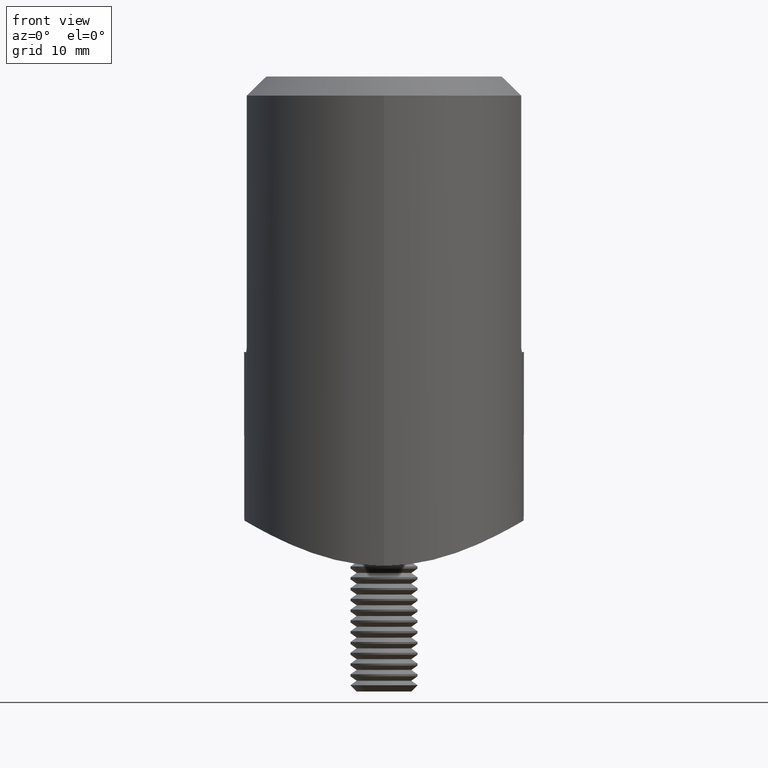
[diagram: clean part render]
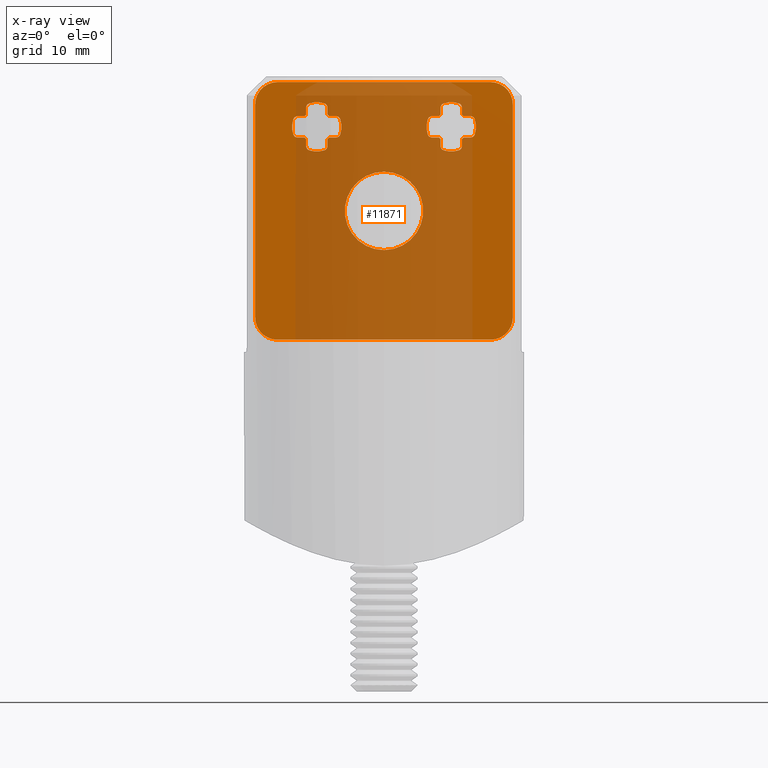
[diagram: x-ray — body ghosted, one internal face saturated and labeled with its STEP entity id]
A machine part, front view, then the same camera in x-ray: the body is ghosted and one INTERNAL B-rep face — a face not visible from any outside direction — is saturated and labeled: STEP entity #11871.
In plain terms, the highlighted planar face has unit normal (0, 1, 0).
Its self-contained STEP definition (entity closure, byte-faithful):
#6 = AXIS2_PLACEMENT_3D ( 'NONE', #9630, #11449, #14998 ) ;
#28 = VERTEX_POINT ( 'NONE', #14793 ) ;
#93 = CARTESIAN_POINT ( 'NONE',  ( 6.000000000000002665, 1.000000000000000000, 7.499999999999996447 ) ) ;
#154 = CIRCLE ( 'NONE', #4499, 1.450000000000001732 ) ;
#227 = LINE ( 'NONE', #16421, #8354 ) ;
#302 = EDGE_CURVE ( 'NONE', #20139, #14176, #17451, .T. ) ;
#330 = EDGE_CURVE ( 'NONE', #14980, #4626, #13312, .T. ) ;
#394 = LINE ( 'NONE', #20735, #3758 ) ;
#435 = VERTEX_POINT ( 'NONE', #2857 ) ;
#491 = DIRECTION ( 'NONE',  ( -0.000000000000000000, 1.000000000000000000, 0.000000000000000000 ) ) ;
#519 = CIRCLE ( 'NONE', #6690, 0.4000000000000001887 ) ;
#527 = VERTEX_POINT ( 'NONE', #1363 ) ;
#568 = ORIENTED_EDGE ( 'NONE', *, *, #7793, .T. ) ;
#572 = DIRECTION ( 'NONE',  ( 0.000000000000000000, 0.000000000000000000, -1.000000000000000000 ) ) ;
#620 = CIRCLE ( 'NONE', #13536, 1.450000000000001732 ) ;
#675 = AXIS2_PLACEMENT_3D ( 'NONE', #11731, #8061, #15264 ) ;
#703 = LINE ( 'NONE', #20973, #14906 ) ;
#829 = CARTESIAN_POINT ( 'NONE',  ( -11.50000000000000000, 1.000000000000000000, 11.49999999999999645 ) ) ;
#864 = CARTESIAN_POINT ( 'NONE',  ( -5.327777777777781054, 1.000000000000000000, 5.405216649877454316 ) ) ;
#1027 = ORIENTED_EDGE ( 'NONE', *, *, #20665, .T. ) ;
#1060 = EDGE_CURVE ( 'NONE', #3324, #2832, #21600, .T. ) ;
#1062 = ORIENTED_EDGE ( 'NONE', *, *, #302, .T. ) ;
#1219 = DIRECTION ( 'NONE',  ( 0.000000000000000000, 0.000000000000000000, -1.000000000000000000 ) ) ;
#1259 = DIRECTION ( 'NONE',  ( -2.168404344971007685E-15, 0.000000000000000000, -1.000000000000000000 ) ) ;
#1289 = DIRECTION ( 'NONE',  ( 0.000000000000000000, 0.000000000000000000, -1.000000000000000000 ) ) ;
#1363 = CARTESIAN_POINT ( 'NONE',  ( -4.286086349899737691, 1.000000000000000000, 6.549999999999997158 ) ) ;
#1484 = CARTESIAN_POINT ( 'NONE',  ( -5.050000000000003375, 1.000000000000000000, 5.786086349899735026 ) ) ;
#1595 = DIRECTION ( 'NONE',  ( 0.000000000000000000, 0.000000000000000000, -1.000000000000000000 ) ) ;
#1653 = VERTEX_POINT ( 'NONE', #18436 ) ;
#1850 = EDGE_CURVE ( 'NONE', #22654, #20996, #17673, .T. ) ;
#1933 = EDGE_LOOP ( 'NONE', ( #2242, #7231, #20050, #13813, #20285, #15767, #6709, #21384, #5199, #3446, #22024, #13448, #5845, #5086, #2772, #17894, #7432, #9699, #15348, #5830, #14850, #568, #4281, #20644 ) ) ;
#1968 = DIRECTION ( 'NONE',  ( 0.000000000000000000, -1.000000000000000000, -0.000000000000000000 ) ) ;
#2022 = DIRECTION ( 'NONE',  ( -0.000000000000000000, 1.000000000000000000, 0.000000000000000000 ) ) ;
#2125 = DIRECTION ( 'NONE',  ( 0.000000000000000000, -1.000000000000000000, -0.000000000000000000 ) ) ;
#2231 = DIRECTION ( 'NONE',  ( 0.000000000000000000, 0.000000000000000000, -1.000000000000000000 ) ) ;
#2242 = ORIENTED_EDGE ( 'NONE', *, *, #2300, .F. ) ;
#2300 = EDGE_CURVE ( 'NONE', #6421, #15086, #13736, .T. ) ;
#2502 = VECTOR ( 'NONE', #10146, 1000.000000000000000 ) ;
#2520 = ORIENTED_EDGE ( 'NONE', *, *, #11246, .F. ) ;
#2543 = CIRCLE ( 'NONE', #7397, 0.4000000000000001887 ) ;
#2593 = CARTESIAN_POINT ( 'NONE',  ( 6.000000000000002665, 1.000000000000000000, 7.499999999999996447 ) ) ;
#2758 = EDGE_CURVE ( 'NONE', #22166, #8748, #8192, .T. ) ;
#2766 = ORIENTED_EDGE ( 'NONE', *, *, #1850, .T. ) ;
#2772 = ORIENTED_EDGE ( 'NONE', *, *, #16440, .T. ) ;
#2802 = CIRCLE ( 'NONE', #19477, 0.3999999999999993006 ) ;
#2832 = VERTEX_POINT ( 'NONE', #15042 ) ;
#2857 = CARTESIAN_POINT ( 'NONE',  ( -9.500000000000005329, 1.000000000000000000, -11.49999999999999112 ) ) ;
#2881 = DIRECTION ( 'NONE',  ( 0.000000000000000000, 0.000000000000000000, 1.000000000000000000 ) ) ;
#2918 = EDGE_CURVE ( 'NONE', #23083, #5296, #15648, .T. ) ;
#2968 = VERTEX_POINT ( 'NONE', #20991 ) ;
#2979 = VERTEX_POINT ( 'NONE', #7053 ) ;
#3079 = LINE ( 'NONE', #12520, #6161 ) ;
#3324 = VERTEX_POINT ( 'NONE', #6417 ) ;
#3346 = VERTEX_POINT ( 'NONE', #11543 ) ;
#3387 = AXIS2_PLACEMENT_3D ( 'NONE', #8674, #21157, #1595 ) ;
#3446 = ORIENTED_EDGE ( 'NONE', *, *, #8259, .T. ) ;
#3475 = CARTESIAN_POINT ( 'NONE',  ( -7.095445115013531812, 1.000000000000000000, 6.549999999999996270 ) ) ;
#3484 = ORIENTED_EDGE ( 'NONE', *, *, #9007, .T. ) ;
#3531 = LINE ( 'NONE', #16860, #13837 ) ;
#3644 = EDGE_CURVE ( 'NONE', #21978, #3346, #227, .T. ) ;
#3678 = DIRECTION ( 'NONE',  ( 0.000000000000000000, 0.000000000000000000, -1.000000000000000000 ) ) ;
#3722 = VERTEX_POINT ( 'NONE', #20437 ) ;
#3728 = DIRECTION ( 'NONE',  ( 1.000000000000000000, 0.000000000000000000, 7.542275982507857147E-17 ) ) ;
#3758 = VECTOR ( 'NONE', #6641, 1000.000000000000000 ) ;
#3769 = EDGE_CURVE ( 'NONE', #2968, #11783, #16084, .T. ) ;
#3793 = EDGE_CURVE ( 'NONE', #19133, #2832, #519, .T. ) ;
#3804 = DIRECTION ( 'NONE',  ( 0.000000000000000000, -1.000000000000000000, -0.000000000000000000 ) ) ;
#3936 = CARTESIAN_POINT ( 'NONE',  ( -11.50000000000000000, 1.000000000000000000, 9.499999999999996447 ) ) ;
#3985 = CARTESIAN_POINT ( 'NONE',  ( 6.000000000000002665, 1.000000000000000000, 7.499999999999996447 ) ) ;
#4042 = EDGE_CURVE ( 'NONE', #3722, #435, #17769, .T. ) ;
#4268 = VERTEX_POINT ( 'NONE', #16935 ) ;
#4281 = ORIENTED_EDGE ( 'NONE', *, *, #15113, .F. ) ;
#4335 = CIRCLE ( 'NONE', #5715, 1.450000000000001732 ) ;
#4381 = DIRECTION ( 'NONE',  ( 0.000000000000000000, -1.000000000000000000, 0.000000000000000000 ) ) ;
#4478 = VECTOR ( 'NONE', #9111, 1000.000000000000000 ) ;
#4482 = CARTESIAN_POINT ( 'NONE',  ( 11.50000000000000000, 1.000000000000000000, 9.499999999999998224 ) ) ;
#4498 = CARTESIAN_POINT ( 'NONE',  ( 6.672222222222226939, 1.000000000000000000, 5.405216649877455204 ) ) ;
#4499 = AXIS2_PLACEMENT_3D ( 'NONE', #23107, #14217, #10728 ) ;
#4577 = AXIS2_PLACEMENT_3D ( 'NONE', #11793, #15399, #11872 ) ;
#4580 = AXIS2_PLACEMENT_3D ( 'NONE', #3985, #2125, #12889 ) ;
#4626 = VERTEX_POINT ( 'NONE', #4887 ) ;
#4633 = FACE_OUTER_BOUND ( 'NONE', #17203, .T. ) ;
#4637 = CIRCLE ( 'NONE', #7781, 2.200000000000000622 ) ;
#4700 = VECTOR ( 'NONE', #5636, 1000.000000000000000 ) ;
#4793 = CIRCLE ( 'NONE', #6722, 2.200000000000000622 ) ;
#4887 = CARTESIAN_POINT ( 'NONE',  ( -6.672222222222226051, 1.000000000000000000, 9.594783350122536802 ) ) ;
#4952 = CARTESIAN_POINT ( 'NONE',  ( 5.327777777777778390, 1.000000000000000000, 9.594783350122536802 ) ) ;
#5030 = CARTESIAN_POINT ( 'NONE',  ( -6.950000000000001954, 1.000000000000000000, 9.213913650100257868 ) ) ;
#5052 = LINE ( 'NONE', #7364, #4478 ) ;
#5078 = DIRECTION ( 'NONE',  ( -1.508455196501571429E-16, 0.000000000000000000, -1.000000000000000000 ) ) ;
#5086 = ORIENTED_EDGE ( 'NONE', *, *, #6932, .T. ) ;
#5110 = EDGE_CURVE ( 'NONE', #7623, #10399, #14143, .T. ) ;
#5184 = ORIENTED_EDGE ( 'NONE', *, *, #9480, .T. ) ;
#5199 = ORIENTED_EDGE ( 'NONE', *, *, #17174, .T. ) ;
#5235 = CARTESIAN_POINT ( 'NONE',  ( 6.949999999998421885, 1.000000000000000000, 8.595445115011701276 ) ) ;
#5280 = CIRCLE ( 'NONE', #22964, 2.200000000000000622 ) ;
#5296 = VERTEX_POINT ( 'NONE', #7949 ) ;
#5309 = VERTEX_POINT ( 'NONE', #9635 ) ;
#5377 = VERTEX_POINT ( 'NONE', #17012 ) ;
#5385 = VERTEX_POINT ( 'NONE', #22412 ) ;
#5413 = DIRECTION ( 'NONE',  ( 0.000000000000000000, 0.000000000000000000, -1.000000000000000000 ) ) ;
#5636 = DIRECTION ( 'NONE',  ( -1.000000000000000000, -0.000000000000000000, 5.279593187755499510E-16 ) ) ;
#5662 = CARTESIAN_POINT ( 'NONE',  ( -5.450000000000001954, 1.000000000000000000, 9.213913650100261421 ) ) ;
#5698 = EDGE_CURVE ( 'NONE', #5385, #5377, #14539, .T. ) ;
#5715 = AXIS2_PLACEMENT_3D ( 'NONE', #19669, #8994, #23029 ) ;
#5801 = DIRECTION ( 'NONE',  ( -6.263226980648714405E-16, 0.000000000000000000, -1.000000000000000000 ) ) ;
#5819 = DIRECTION ( 'NONE',  ( 6.263226980648709475E-16, 0.000000000000000000, 1.000000000000000000 ) ) ;
#5820 = CARTESIAN_POINT ( 'NONE',  ( 6.950000000000002842, 1.000000000000000000, 6.499999999999997335 ) ) ;
#5828 = DIRECTION ( 'NONE',  ( -0.000000000000000000, 1.000000000000000000, 0.000000000000000000 ) ) ;
#5830 = ORIENTED_EDGE ( 'NONE', *, *, #22835, .T. ) ;
#5845 = ORIENTED_EDGE ( 'NONE', *, *, #13173, .F. ) ;
#5897 = AXIS2_PLACEMENT_3D ( 'NONE', #2593, #6201, #18603 ) ;
#5939 = VERTEX_POINT ( 'NONE', #6015 ) ;
#5981 = DIRECTION ( 'NONE',  ( 2.602085213965210642E-15, 0.000000000000000000, -1.000000000000000000 ) ) ;
#6015 = CARTESIAN_POINT ( 'NONE',  ( 7.095445115013530923, 1.000000000000000000, 8.449999999999997513 ) ) ;
#6063 = CIRCLE ( 'NONE', #22681, 1.450000000000001732 ) ;
#6161 = VECTOR ( 'NONE', #23007, 1000.000000000000000 ) ;
#6192 = CARTESIAN_POINT ( 'NONE',  ( 7.095445115011708381, 1.000000000000000000, 6.550000000001578115 ) ) ;
#6201 = DIRECTION ( 'NONE',  ( 0.000000000000000000, -1.000000000000000000, -0.000000000000000000 ) ) ;
#6274 = AXIS2_PLACEMENT_3D ( 'NONE', #22132, #15026, #21904 ) ;
#6362 = DIRECTION ( 'NONE',  ( -0.000000000000000000, 1.000000000000000000, 0.000000000000000000 ) ) ;
#6417 = CARTESIAN_POINT ( 'NONE',  ( 8.094783350122543908, 1.000000000000000000, 6.827777777777773061 ) ) ;
#6421 = VERTEX_POINT ( 'NONE', #9855 ) ;
#6495 = DIRECTION ( 'NONE',  ( 1.000000000000000000, -0.000000000000000000, -0.000000000000000000 ) ) ;
#6512 = EDGE_CURVE ( 'NONE', #20336, #15086, #4793, .T. ) ;
#6573 = DIRECTION ( 'NONE',  ( 0.000000000000000000, -1.000000000000000000, -0.000000000000000000 ) ) ;
#6641 = DIRECTION ( 'NONE',  ( -0.000000000000000000, -0.000000000000000000, 1.000000000000000000 ) ) ;
#6690 = AXIS2_PLACEMENT_3D ( 'NONE', #22830, #22522, #10149 ) ;
#6695 = CARTESIAN_POINT ( 'NONE',  ( 6.000000000000002665, 1.000000000000000000, 7.499999999999996447 ) ) ;
#6709 = ORIENTED_EDGE ( 'NONE', *, *, #2758, .F. ) ;
#6722 = AXIS2_PLACEMENT_3D ( 'NONE', #6695, #17150, #1219 ) ;
#6792 = CARTESIAN_POINT ( 'NONE',  ( -7.000000000000002665, 1.000000000000000000, 6.549999999999996270 ) ) ;
#6823 = EDGE_CURVE ( 'NONE', #22654, #10399, #14246, .T. ) ;
#6826 = AXIS2_PLACEMENT_3D ( 'NONE', #9941, #13756, #1289 ) ;
#6883 = CIRCLE ( 'NONE', #20862, 3.499999999999999556 ) ;
#6887 = DIRECTION ( 'NONE',  ( 0.000000000000000000, -1.000000000000000000, -0.000000000000000000 ) ) ;
#6906 = CARTESIAN_POINT ( 'NONE',  ( -5.050000000000002487, 1.000000000000000000, 8.595445115013525594 ) ) ;
#6932 = EDGE_CURVE ( 'NONE', #10991, #4268, #21502, .T. ) ;
#7052 = CIRCLE ( 'NONE', #13056, 0.4000000000000001887 ) ;
#7053 = CARTESIAN_POINT ( 'NONE',  ( -6.672222222222226939, 1.000000000000000000, 5.405216649877457868 ) ) ;
#7100 = CARTESIAN_POINT ( 'NONE',  ( 6.950000000000002842, 1.000000000000000000, 5.786086349899735026 ) ) ;
#7161 = AXIS2_PLACEMENT_3D ( 'NONE', #11884, #13510, #1259 ) ;
#7231 = ORIENTED_EDGE ( 'NONE', *, *, #16722, .T. ) ;
#7364 = CARTESIAN_POINT ( 'NONE',  ( 5.000000000000003553, 1.000000000000000000, 6.549999999999997158 ) ) ;
#7397 = AXIS2_PLACEMENT_3D ( 'NONE', #7682, #15048, #572 ) ;
#7416 = DIRECTION ( 'NONE',  ( 0.000000000000000000, 0.000000000000000000, -1.000000000000000000 ) ) ;
#7432 = ORIENTED_EDGE ( 'NONE', *, *, #22889, .F. ) ;
#7521 = CARTESIAN_POINT ( 'NONE',  ( -7.713913650100257868, 1.000000000000000000, 6.949999999999995737 ) ) ;
#7538 = CIRCLE ( 'NONE', #22302, 2.000000000000000000 ) ;
#7623 = VERTEX_POINT ( 'NONE', #10521 ) ;
#7649 = VERTEX_POINT ( 'NONE', #21192 ) ;
#7650 = DIRECTION ( 'NONE',  ( -1.000000000000000000, 0.000000000000000000, 0.000000000000000000 ) ) ;
#7682 = CARTESIAN_POINT ( 'NONE',  ( -7.713913650100259645, 1.000000000000000000, 8.049999999999997158 ) ) ;
#7781 = AXIS2_PLACEMENT_3D ( 'NONE', #8641, #3804, #12867 ) ;
#7793 = EDGE_CURVE ( 'NONE', #9141, #7649, #18104, .T. ) ;
#7865 = EDGE_CURVE ( 'NONE', #28, #17910, #2802, .T. ) ;
#7880 = CARTESIAN_POINT ( 'NONE',  ( -5.000000000000003553, 1.000000000000000000, 8.449999999999997513 ) ) ;
#7889 = AXIS2_PLACEMENT_3D ( 'NONE', #18390, #4381, #13369 ) ;
#7949 = CARTESIAN_POINT ( 'NONE',  ( -7.095445115011707493, 1.000000000000000000, 8.449999999998414779 ) ) ;
#8061 = DIRECTION ( 'NONE',  ( -0.000000000000000000, 1.000000000000000000, 0.000000000000000000 ) ) ;
#8134 = EDGE_CURVE ( 'NONE', #17248, #1653, #7538, .T. ) ;
#8192 = CIRCLE ( 'NONE', #14134, 0.4000000000000001887 ) ;
#8232 = VECTOR ( 'NONE', #13714, 1000.000000000000000 ) ;
#8259 = EDGE_CURVE ( 'NONE', #12005, #10749, #12282, .T. ) ;
#8354 = VECTOR ( 'NONE', #5819, 1000.000000000000000 ) ;
#8455 = DIRECTION ( 'NONE',  ( 0.000000000000000000, -1.000000000000000000, -0.000000000000000000 ) ) ;
#8472 = VECTOR ( 'NONE', #3728, 1000.000000000000000 ) ;
#8495 = DIRECTION ( 'NONE',  ( 0.000000000000000000, -1.000000000000000000, -0.000000000000000000 ) ) ;
#8543 = VERTEX_POINT ( 'NONE', #15167 ) ;
#8578 = ORIENTED_EDGE ( 'NONE', *, *, #10738, .T. ) ;
#8579 = ORIENTED_EDGE ( 'NONE', *, *, #15036, .T. ) ;
#8582 = VERTEX_POINT ( 'NONE', #13422 ) ;
#8602 = DIRECTION ( 'NONE',  ( -0.000000000000000000, 1.000000000000000000, 0.000000000000000000 ) ) ;
#8641 = CARTESIAN_POINT ( 'NONE',  ( 6.000000000000002665, 1.000000000000000000, 7.499999999999996447 ) ) ;
#8647 = DIRECTION ( 'NONE',  ( 4.336808689942015369E-15, 0.000000000000000000, -1.000000000000000000 ) ) ;
#8674 = CARTESIAN_POINT ( 'NONE',  ( 7.713913650100264086, 1.000000000000000000, 6.949999999999995737 ) ) ;
#8693 = ORIENTED_EDGE ( 'NONE', *, *, #21866, .T. ) ;
#8732 = LINE ( 'NONE', #10677, #8472 ) ;
#8748 = VERTEX_POINT ( 'NONE', #12488 ) ;
#8808 = FACE_BOUND ( 'NONE', #1933, .T. ) ;
#8828 = CIRCLE ( 'NONE', #16322, 0.4000000000000001887 ) ;
#8845 = CARTESIAN_POINT ( 'NONE',  ( 0.000000000000000000, 1.000000000000000000, 8.449999999999997513 ) ) ;
#8921 = ORIENTED_EDGE ( 'NONE', *, *, #10876, .F. ) ;
#8994 = DIRECTION ( 'NONE',  ( 0.000000000000000000, -1.000000000000000000, -0.000000000000000000 ) ) ;
#9007 = EDGE_CURVE ( 'NONE', #28, #4626, #20287, .T. ) ;
#9017 = CARTESIAN_POINT ( 'NONE',  ( -5.450000000000002842, 1.000000000000000000, 5.786086349899735026 ) ) ;
#9111 = DIRECTION ( 'NONE',  ( 1.000000000000000000, 0.000000000000000000, 0.000000000000000000 ) ) ;
#9123 = DIRECTION ( 'NONE',  ( -0.000000000000000000, 1.000000000000000000, 0.000000000000000000 ) ) ;
#9141 = VERTEX_POINT ( 'NONE', #5235 ) ;
#9303 = ORIENTED_EDGE ( 'NONE', *, *, #21251, .T. ) ;
#9332 = ORIENTED_EDGE ( 'NONE', *, *, #13482, .T. ) ;
#9350 = VECTOR ( 'NONE', #19068, 1000.000000000000000 ) ;
#9400 = ORIENTED_EDGE ( 'NONE', *, *, #9752, .T. ) ;
#9463 = EDGE_LOOP ( 'NONE', ( #8921 ) ) ;
#9480 = EDGE_CURVE ( 'NONE', #16644, #17248, #19432, .T. ) ;
#9518 = CARTESIAN_POINT ( 'NONE',  ( 5.450000000000002842, 1.000000000000000000, 5.786086349899735026 ) ) ;
#9525 = VERTEX_POINT ( 'NONE', #22320 ) ;
#9630 = CARTESIAN_POINT ( 'NONE',  ( 9.500000000000000000, 1.000000000000000000, 9.499999999999998224 ) ) ;
#9632 = CARTESIAN_POINT ( 'NONE',  ( 0.000000000000000000, 1.000000000000000000, 0.000000000000000000 ) ) ;
#9635 = CARTESIAN_POINT ( 'NONE',  ( 5.327777777777780166, 1.000000000000000000, 5.405216649877454316 ) ) ;
#9699 = ORIENTED_EDGE ( 'NONE', *, *, #1060, .T. ) ;
#9752 = EDGE_CURVE ( 'NONE', #5296, #9525, #16042, .T. ) ;
#9855 = CARTESIAN_POINT ( 'NONE',  ( 5.050000000000002487, 1.000000000000000000, 9.213913650100257868 ) ) ;
#9908 = DIRECTION ( 'NONE',  ( 0.000000000000000000, 0.000000000000000000, -1.000000000000000000 ) ) ;
#9941 = CARTESIAN_POINT ( 'NONE',  ( 5.450000000000001954, 1.000000000000000000, 9.213913650100257868 ) ) ;
#9987 = ORIENTED_EDGE ( 'NONE', *, *, #15127, .T. ) ;
#10146 = DIRECTION ( 'NONE',  ( 6.263226980648709475E-16, -0.000000000000000000, -1.000000000000000000 ) ) ;
#10149 = DIRECTION ( 'NONE',  ( 0.000000000000000000, 0.000000000000000000, -1.000000000000000000 ) ) ;
#10178 = EDGE_CURVE ( 'NONE', #5309, #10749, #8828, .T. ) ;
#10312 = AXIS2_PLACEMENT_3D ( 'NONE', #11029, #491, #5981 ) ;
#10332 = DIRECTION ( 'NONE',  ( -6.263226980648714405E-16, -0.000000000000000000, 1.000000000000000000 ) ) ;
#10399 = VERTEX_POINT ( 'NONE', #22685 ) ;
#10489 = VERTEX_POINT ( 'NONE', #10628 ) ;
#10512 = CARTESIAN_POINT ( 'NONE',  ( 6.000000000000002665, 1.000000000000000000, 7.499999999999996447 ) ) ;
#10521 = CARTESIAN_POINT ( 'NONE',  ( -8.094783350122540355, 1.000000000000000000, 8.172222222222217169 ) ) ;
#10604 = EDGE_CURVE ( 'NONE', #5385, #20682, #11063, .T. ) ;
#10628 = CARTESIAN_POINT ( 'NONE',  ( -3.905216649877456536, 1.000000000000000000, 6.827777777777773061 ) ) ;
#10677 = CARTESIAN_POINT ( 'NONE',  ( -11.50000000000000000, 1.000000000000000000, 11.49999999999999645 ) ) ;
#10690 = EDGE_CURVE ( 'NONE', #14980, #23083, #20238, .T. ) ;
#10728 = DIRECTION ( 'NONE',  ( 0.000000000000000000, 0.000000000000000000, -1.000000000000000000 ) ) ;
#10738 = EDGE_CURVE ( 'NONE', #22037, #527, #3531, .T. ) ;
#10749 = VERTEX_POINT ( 'NONE', #18589 ) ;
#10793 = VECTOR ( 'NONE', #7650, 1000.000000000000000 ) ;
#10851 = AXIS2_PLACEMENT_3D ( 'NONE', #14905, #13008, #14830 ) ;
#10876 = EDGE_CURVE ( 'NONE', #12517, #12517, #6883, .T. ) ;
#10986 = ORIENTED_EDGE ( 'NONE', *, *, #21842, .T. ) ;
#10991 = VERTEX_POINT ( 'NONE', #7100 ) ;
#11029 = CARTESIAN_POINT ( 'NONE',  ( 9.499999999999996447, 1.000000000000000000, -9.500000000000000000 ) ) ;
#11063 = LINE ( 'NONE', #7880, #10793 ) ;
#11246 = EDGE_CURVE ( 'NONE', #2979, #14176, #19393, .T. ) ;
#11284 = ORIENTED_EDGE ( 'NONE', *, *, #7865, .F. ) ;
#11349 = CIRCLE ( 'NONE', #4580, 1.450000000000001732 ) ;
#11449 = DIRECTION ( 'NONE',  ( -0.000000000000000000, 1.000000000000000000, 0.000000000000000000 ) ) ;
#11476 = ORIENTED_EDGE ( 'NONE', *, *, #5698, .F. ) ;
#11494 = ORIENTED_EDGE ( 'NONE', *, *, #3644, .T. ) ;
#11543 = CARTESIAN_POINT ( 'NONE',  ( -5.050000000001583444, 1.000000000000000000, 6.404554884988290731 ) ) ;
#11577 = CIRCLE ( 'NONE', #21144, 2.200000000000000622 ) ;
#11656 = AXIS2_PLACEMENT_3D ( 'NONE', #18066, #12588, #5413 ) ;
#11680 = ORIENTED_EDGE ( 'NONE', *, *, #19895, .F. ) ;
#11724 = ORIENTED_EDGE ( 'NONE', *, *, #5110, .T. ) ;
#11731 = CARTESIAN_POINT ( 'NONE',  ( 4.286086349899742132, 1.000000000000000000, 8.049999999999997158 ) ) ;
#11757 = DIRECTION ( 'NONE',  ( 0.000000000000000000, -1.000000000000000000, -0.000000000000000000 ) ) ;
#11783 = VERTEX_POINT ( 'NONE', #21611 ) ;
#11793 = CARTESIAN_POINT ( 'NONE',  ( -5.999999999999997335, 1.000000000000000000, 7.499999999999998224 ) ) ;
#11871 = ADVANCED_FACE ( 'NONE', ( #8808, #4633, #23020, #13815 ), #16807, .F. ) ;
#11872 = DIRECTION ( 'NONE',  ( 0.000000000000000000, 0.000000000000000000, -1.000000000000000000 ) ) ;
#11880 = CARTESIAN_POINT ( 'NONE',  ( 0.000000000000000000, 1.000000000000000000, 3.499999999999999556 ) ) ;
#11884 = CARTESIAN_POINT ( 'NONE',  ( -4.286086349899735914, 1.000000000000000000, 8.049999999999997158 ) ) ;
#12005 = VERTEX_POINT ( 'NONE', #17047 ) ;
#12060 = DIRECTION ( 'NONE',  ( 0.000000000000000000, 0.000000000000000000, -1.000000000000000000 ) ) ;
#12110 = ORIENTED_EDGE ( 'NONE', *, *, #4042, .T. ) ;
#12127 = DIRECTION ( 'NONE',  ( 0.000000000000000000, -1.000000000000000000, -0.000000000000000000 ) ) ;
#12143 = DIRECTION ( 'NONE',  ( -8.673617379884035472E-16, 0.000000000000000000, -1.000000000000000000 ) ) ;
#12176 = VECTOR ( 'NONE', #13395, 1000.000000000000000 ) ;
#12224 = EDGE_CURVE ( 'NONE', #8543, #11783, #12983, .T. ) ;
#12282 = LINE ( 'NONE', #19007, #2502 ) ;
#12295 = ORIENTED_EDGE ( 'NONE', *, *, #2918, .T. ) ;
#12414 = CARTESIAN_POINT ( 'NONE',  ( -4.904554884986473517, 1.000000000000000000, 6.549999999999997158 ) ) ;
#12488 = CARTESIAN_POINT ( 'NONE',  ( 3.905216649877461421, 1.000000000000000000, 6.827777777777773061 ) ) ;
#12515 = CARTESIAN_POINT ( 'NONE',  ( -6.949999999998421885, 1.000000000000000000, 6.404554884988290731 ) ) ;
#12517 = VERTEX_POINT ( 'NONE', #11880 ) ;
#12520 = CARTESIAN_POINT ( 'NONE',  ( 7.000000000000002665, 1.000000000000000000, 8.449999999999997513 ) ) ;
#12585 = CIRCLE ( 'NONE', #11656, 0.3999999999999993006 ) ;
#12588 = DIRECTION ( 'NONE',  ( -0.000000000000000000, 1.000000000000000000, 0.000000000000000000 ) ) ;
#12750 = VECTOR ( 'NONE', #21216, 1000.000000000000000 ) ;
#12867 = DIRECTION ( 'NONE',  ( 0.000000000000000000, 0.000000000000000000, -1.000000000000000000 ) ) ;
#12889 = DIRECTION ( 'NONE',  ( 0.000000000000000000, 0.000000000000000000, -1.000000000000000000 ) ) ;
#12899 = DIRECTION ( 'NONE',  ( 0.000000000000000000, 0.000000000000000000, -1.000000000000000000 ) ) ;
#12946 = CARTESIAN_POINT ( 'NONE',  ( -6.950000000000002842, 1.000000000000000000, 5.786086349899738579 ) ) ;
#12983 = LINE ( 'NONE', #15066, #12176 ) ;
#13008 = DIRECTION ( 'NONE',  ( -0.000000000000000000, 1.000000000000000000, 0.000000000000000000 ) ) ;
#13046 = VECTOR ( 'NONE', #20704, 1000.000000000000000 ) ;
#13056 = AXIS2_PLACEMENT_3D ( 'NONE', #9017, #2022, #7416 ) ;
#13143 = CARTESIAN_POINT ( 'NONE',  ( 4.286086349899742132, 1.000000000000000000, 6.949999999999995737 ) ) ;
#13173 = EDGE_CURVE ( 'NONE', #10991, #17817, #17800, .T. ) ;
#13209 = VERTEX_POINT ( 'NONE', #20504 ) ;
#13297 = VECTOR ( 'NONE', #5801, 1000.000000000000000 ) ;
#13312 = CIRCLE ( 'NONE', #14102, 0.3999999999999993006 ) ;
#13369 = DIRECTION ( 'NONE',  ( 0.000000000000000000, 0.000000000000000000, -1.000000000000000000 ) ) ;
#13388 = ORIENTED_EDGE ( 'NONE', *, *, #17139, .T. ) ;
#13395 = DIRECTION ( 'NONE',  ( -1.000000000000000000, -0.000000000000000000, -0.000000000000000000 ) ) ;
#13422 = CARTESIAN_POINT ( 'NONE',  ( 9.499999999999998224, 1.000000000000000000, 11.49999999999999822 ) ) ;
#13439 = AXIS2_PLACEMENT_3D ( 'NONE', #7521, #19964, #21910 ) ;
#13448 = ORIENTED_EDGE ( 'NONE', *, *, #16821, .T. ) ;
#13482 = EDGE_CURVE ( 'NONE', #2979, #20374, #5280, .T. ) ;
#13502 = CIRCLE ( 'NONE', #5897, 2.200000000000000622 ) ;
#13510 = DIRECTION ( 'NONE',  ( -0.000000000000000000, 1.000000000000000000, 0.000000000000000000 ) ) ;
#13536 = AXIS2_PLACEMENT_3D ( 'NONE', #20456, #18948, #13684 ) ;
#13684 = DIRECTION ( 'NONE',  ( 0.000000000000000000, 0.000000000000000000, -1.000000000000000000 ) ) ;
#13702 = AXIS2_PLACEMENT_3D ( 'NONE', #22914, #12127, #19402 ) ;
#13707 = VECTOR ( 'NONE', #18314, 1000.000000000000000 ) ;
#13714 = DIRECTION ( 'NONE',  ( 1.000000000000000000, 0.000000000000000000, -6.263226980648714405E-16 ) ) ;
#13723 = DIRECTION ( 'NONE',  ( -0.000000000000000000, 1.000000000000000000, 0.000000000000000000 ) ) ;
#13736 = CIRCLE ( 'NONE', #6826, 0.3999999999999993006 ) ;
#13756 = DIRECTION ( 'NONE',  ( -0.000000000000000000, 1.000000000000000000, 0.000000000000000000 ) ) ;
#13813 = ORIENTED_EDGE ( 'NONE', *, *, #12224, .T. ) ;
#13815 = FACE_BOUND ( 'NONE', #22030, .T. ) ;
#13818 = ORIENTED_EDGE ( 'NONE', *, *, #14253, .T. ) ;
#13822 = CARTESIAN_POINT ( 'NONE',  ( -7.713913650100257868, 1.000000000000000000, 6.549999999999997158 ) ) ;
#13837 = VECTOR ( 'NONE', #6495, 1000.000000000000000 ) ;
#14000 = EDGE_CURVE ( 'NONE', #5939, #9141, #14844, .T. ) ;
#14102 = AXIS2_PLACEMENT_3D ( 'NONE', #22919, #19254, #12060 ) ;
#14134 = AXIS2_PLACEMENT_3D ( 'NONE', #13143, #22147, #21993 ) ;
#14143 = CIRCLE ( 'NONE', #13702, 2.200000000000000622 ) ;
#14176 = VERTEX_POINT ( 'NONE', #12946 ) ;
#14217 = DIRECTION ( 'NONE',  ( 0.000000000000000000, -1.000000000000000000, -0.000000000000000000 ) ) ;
#14246 = CIRCLE ( 'NONE', #13439, 0.4000000000000001887 ) ;
#14253 = EDGE_CURVE ( 'NONE', #8582, #18327, #22635, .T. ) ;
#14324 = DIRECTION ( 'NONE',  ( 0.000000000000000000, 0.000000000000000000, -1.000000000000000000 ) ) ;
#14369 = LINE ( 'NONE', #20729, #9350 ) ;
#14539 = CIRCLE ( 'NONE', #7161, 0.4000000000000001887 ) ;
#14543 = CARTESIAN_POINT ( 'NONE',  ( -11.50000000000000355, 1.000000000000000000, -11.49999999999998934 ) ) ;
#14747 = VERTEX_POINT ( 'NONE', #16355 ) ;
#14793 = CARTESIAN_POINT ( 'NONE',  ( -5.327777777777780166, 1.000000000000000000, 9.594783350122540355 ) ) ;
#14830 = DIRECTION ( 'NONE',  ( 0.000000000000000000, 0.000000000000000000, -1.000000000000000000 ) ) ;
#14844 = CIRCLE ( 'NONE', #16501, 1.450000000000001732 ) ;
#14850 = ORIENTED_EDGE ( 'NONE', *, *, #14000, .T. ) ;
#14905 = CARTESIAN_POINT ( 'NONE',  ( -6.550000000000003375, 1.000000000000000000, 5.786086349899738579 ) ) ;
#14906 = VECTOR ( 'NONE', #5078, 1000.000000000000000 ) ;
#14980 = VERTEX_POINT ( 'NONE', #5030 ) ;
#14998 = DIRECTION ( 'NONE',  ( 0.000000000000000000, 0.000000000000000000, -1.000000000000000000 ) ) ;
#15019 = CARTESIAN_POINT ( 'NONE',  ( 6.672222222222225163, 1.000000000000000000, 9.594783350122536802 ) ) ;
#15026 = DIRECTION ( 'NONE',  ( -0.000000000000000000, 1.000000000000000000, 0.000000000000000000 ) ) ;
#15036 = EDGE_CURVE ( 'NONE', #435, #16644, #17551, .T. ) ;
#15042 = CARTESIAN_POINT ( 'NONE',  ( 8.094783350122545684, 1.000000000000000000, 8.172222222222217169 ) ) ;
#15048 = DIRECTION ( 'NONE',  ( -0.000000000000000000, 1.000000000000000000, 0.000000000000000000 ) ) ;
#15058 = AXIS2_PLACEMENT_3D ( 'NONE', #15559, #13723, #8647 ) ;
#15064 = VERTEX_POINT ( 'NONE', #6906 ) ;
#15066 = CARTESIAN_POINT ( 'NONE',  ( 0.000000000000000000, 1.000000000000000000, 8.449999999999997513 ) ) ;
#15086 = VERTEX_POINT ( 'NONE', #4952 ) ;
#15113 = EDGE_CURVE ( 'NONE', #20336, #7649, #12585, .T. ) ;
#15127 = EDGE_CURVE ( 'NONE', #20682, #15064, #19532, .T. ) ;
#15167 = CARTESIAN_POINT ( 'NONE',  ( 4.904554884986475294, 1.000000000000000000, 8.449999999999997513 ) ) ;
#15264 = DIRECTION ( 'NONE',  ( 0.000000000000000000, 0.000000000000000000, -1.000000000000000000 ) ) ;
#15344 = CARTESIAN_POINT ( 'NONE',  ( -6.000000000000002665, 1.000000000000000000, 7.499999999999996447 ) ) ;
#15348 = ORIENTED_EDGE ( 'NONE', *, *, #3793, .F. ) ;
#15399 = DIRECTION ( 'NONE',  ( 0.000000000000000000, -1.000000000000000000, -0.000000000000000000 ) ) ;
#15559 = CARTESIAN_POINT ( 'NONE',  ( -4.286086349899737691, 1.000000000000000000, 6.949999999999995737 ) ) ;
#15594 = DIRECTION ( 'NONE',  ( 0.000000000000000000, 0.000000000000000000, -1.000000000000000000 ) ) ;
#15648 = CIRCLE ( 'NONE', #16925, 1.450000000000001732 ) ;
#15682 = EDGE_CURVE ( 'NONE', #10489, #527, #18640, .T. ) ;
#15767 = ORIENTED_EDGE ( 'NONE', *, *, #18694, .T. ) ;
#15796 = CARTESIAN_POINT ( 'NONE',  ( -6.950000000000002842, 1.000000000000000000, 0.000000000000000000 ) ) ;
#15826 = VECTOR ( 'NONE', #21447, 1000.000000000000000 ) ;
#15931 = AXIS2_PLACEMENT_3D ( 'NONE', #22928, #8602, #12143 ) ;
#16008 = CARTESIAN_POINT ( 'NONE',  ( 6.000000000000002665, 1.000000000000000000, 7.499999999999996447 ) ) ;
#16042 = LINE ( 'NONE', #8845, #20566 ) ;
#16084 = CIRCLE ( 'NONE', #675, 0.4000000000000001887 ) ;
#16107 = EDGE_CURVE ( 'NONE', #13209, #3722, #22479, .T. ) ;
#16322 = AXIS2_PLACEMENT_3D ( 'NONE', #9518, #5828, #2231 ) ;
#16355 = CARTESIAN_POINT ( 'NONE',  ( 7.713913650100264086, 1.000000000000000000, 6.549999999999997158 ) ) ;
#16421 = CARTESIAN_POINT ( 'NONE',  ( -5.050000000000002487, 1.000000000000000000, 6.499999999999998224 ) ) ;
#16440 = EDGE_CURVE ( 'NONE', #4268, #20325, #6063, .T. ) ;
#16501 = AXIS2_PLACEMENT_3D ( 'NONE', #16008, #6887, #19629 ) ;
#16560 = CARTESIAN_POINT ( 'NONE',  ( -6.949999999998421885, 1.000000000000000000, 8.595445115011701276 ) ) ;
#16644 = VERTEX_POINT ( 'NONE', #17342 ) ;
#16722 = EDGE_CURVE ( 'NONE', #6421, #19507, #14369, .T. ) ;
#16802 = CARTESIAN_POINT ( 'NONE',  ( -9.500000000000000000, 1.000000000000000000, 9.499999999999996447 ) ) ;
#16807 = PLANE ( 'NONE',  #7889 ) ;
#16821 = EDGE_CURVE ( 'NONE', #5309, #17817, #4637, .T. ) ;
#16860 = CARTESIAN_POINT ( 'NONE',  ( 0.000000000000000000, 1.000000000000000000, 6.549999999999997158 ) ) ;
#16925 = AXIS2_PLACEMENT_3D ( 'NONE', #15344, #8455, #20757 ) ;
#16935 = CARTESIAN_POINT ( 'NONE',  ( 6.949999999998421885, 1.000000000000000000, 6.404554884988290731 ) ) ;
#17012 = CARTESIAN_POINT ( 'NONE',  ( -3.905216649877455204, 1.000000000000000000, 8.172222222222217169 ) ) ;
#17047 = CARTESIAN_POINT ( 'NONE',  ( 5.050000000000002487, 1.000000000000000000, 6.404554884986466412 ) ) ;
#17111 = CARTESIAN_POINT ( 'NONE',  ( -5.999999999999997335, 1.000000000000000000, 7.499999999999998224 ) ) ;
#17139 = EDGE_CURVE ( 'NONE', #20996, #20139, #154, .T. ) ;
#17150 = DIRECTION ( 'NONE',  ( 0.000000000000000000, -1.000000000000000000, -0.000000000000000000 ) ) ;
#17174 = EDGE_CURVE ( 'NONE', #20582, #12005, #4335, .T. ) ;
#17203 = EDGE_LOOP ( 'NONE', ( #12110, #8579, #5184, #17976, #1027, #13818, #20661, #18164 ) ) ;
#17248 = VERTEX_POINT ( 'NONE', #3936 ) ;
#17301 = CARTESIAN_POINT ( 'NONE',  ( -5.999999999999997335, 1.000000000000000000, 7.499999999999998224 ) ) ;
#17342 = CARTESIAN_POINT ( 'NONE',  ( -11.50000000000000355, 1.000000000000000000, -9.499999999999987566 ) ) ;
#17365 = EDGE_CURVE ( 'NONE', #18327, #13209, #703, .T. ) ;
#17451 = LINE ( 'NONE', #15796, #12750 ) ;
#17551 = CIRCLE ( 'NONE', #15931, 2.000000000000000000 ) ;
#17673 = LINE ( 'NONE', #6792, #8232 ) ;
#17720 = CARTESIAN_POINT ( 'NONE',  ( -5.050000000000002487, 1.000000000000000000, 9.213913650100261421 ) ) ;
#17769 = LINE ( 'NONE', #14543, #4700 ) ;
#17800 = CIRCLE ( 'NONE', #6274, 0.4000000000000001887 ) ;
#17817 = VERTEX_POINT ( 'NONE', #4498 ) ;
#17894 = ORIENTED_EDGE ( 'NONE', *, *, #23017, .T. ) ;
#17910 = VERTEX_POINT ( 'NONE', #17720 ) ;
#17976 = ORIENTED_EDGE ( 'NONE', *, *, #8134, .T. ) ;
#18039 = CARTESIAN_POINT ( 'NONE',  ( -4.904554884988297836, 1.000000000000000000, 8.449999999998414779 ) ) ;
#18060 = DIRECTION ( 'NONE',  ( 0.000000000000000000, -1.000000000000000000, -0.000000000000000000 ) ) ;
#18066 = CARTESIAN_POINT ( 'NONE',  ( 6.550000000000002487, 1.000000000000000000, 9.213913650100257868 ) ) ;
#18104 = LINE ( 'NONE', #21011, #19782 ) ;
#18164 = ORIENTED_EDGE ( 'NONE', *, *, #16107, .T. ) ;
#18173 = CARTESIAN_POINT ( 'NONE',  ( 5.050000000001583444, 1.000000000000000000, 8.595445115011701276 ) ) ;
#18314 = DIRECTION ( 'NONE',  ( 0.000000000000000000, 0.000000000000000000, 1.000000000000000000 ) ) ;
#18327 = VERTEX_POINT ( 'NONE', #4482 ) ;
#18390 = CARTESIAN_POINT ( 'NONE',  ( 0.000000000000000000, 1.000000000000000000, 0.000000000000000000 ) ) ;
#18436 = CARTESIAN_POINT ( 'NONE',  ( -9.500000000000000000, 1.000000000000000000, 11.49999999999999645 ) ) ;
#18459 = ORIENTED_EDGE ( 'NONE', *, *, #10690, .T. ) ;
#18589 = CARTESIAN_POINT ( 'NONE',  ( 5.050000000000003375, 1.000000000000000000, 5.786086349899735026 ) ) ;
#18603 = DIRECTION ( 'NONE',  ( 0.000000000000000000, 0.000000000000000000, -1.000000000000000000 ) ) ;
#18640 = CIRCLE ( 'NONE', #15058, 0.4000000000000001887 ) ;
#18694 = EDGE_CURVE ( 'NONE', #2968, #8748, #13502, .T. ) ;
#18785 = AXIS2_PLACEMENT_3D ( 'NONE', #19864, #1968, #3678 ) ;
#18948 = DIRECTION ( 'NONE',  ( 0.000000000000000000, -1.000000000000000000, -0.000000000000000000 ) ) ;
#18990 = DIRECTION ( 'NONE',  ( 0.000000000000000000, 0.000000000000000000, -1.000000000000000000 ) ) ;
#18993 = EDGE_CURVE ( 'NONE', #21978, #20374, #7052, .T. ) ;
#19007 = CARTESIAN_POINT ( 'NONE',  ( 5.050000000000006928, 1.000000000000000000, 3.162929625227602515E-15 ) ) ;
#19068 = DIRECTION ( 'NONE',  ( -0.000000000000000000, 0.000000000000000000, -1.000000000000000000 ) ) ;
#19133 = VERTEX_POINT ( 'NONE', #22249 ) ;
#19254 = DIRECTION ( 'NONE',  ( -0.000000000000000000, 1.000000000000000000, 0.000000000000000000 ) ) ;
#19306 = CARTESIAN_POINT ( 'NONE',  ( 4.904554884988296060, 1.000000000000000000, 6.550000000001578115 ) ) ;
#19393 = CIRCLE ( 'NONE', #10851, 0.4000000000000001887 ) ;
#19402 = DIRECTION ( 'NONE',  ( 0.000000000000000000, 0.000000000000000000, -1.000000000000000000 ) ) ;
#19432 = LINE ( 'NONE', #829, #13046 ) ;
#19477 = AXIS2_PLACEMENT_3D ( 'NONE', #5662, #9123, #12899 ) ;
#19507 = VERTEX_POINT ( 'NONE', #18173 ) ;
#19532 = CIRCLE ( 'NONE', #18785, 1.450000000000001732 ) ;
#19629 = DIRECTION ( 'NONE',  ( 0.000000000000000000, 0.000000000000000000, -1.000000000000000000 ) ) ;
#19669 = CARTESIAN_POINT ( 'NONE',  ( 6.000000000000002665, 1.000000000000000000, 7.499999999999996447 ) ) ;
#19782 = VECTOR ( 'NONE', #10332, 1000.000000000000000 ) ;
#19791 = CARTESIAN_POINT ( 'NONE',  ( -4.102413672324902132E-15, 1.000000000000000000, 6.549999999999991829 ) ) ;
#19864 = CARTESIAN_POINT ( 'NONE',  ( -6.000000000000002665, 1.000000000000000000, 7.499999999999996447 ) ) ;
#19895 = EDGE_CURVE ( 'NONE', #7623, #9525, #2543, .T. ) ;
#19964 = DIRECTION ( 'NONE',  ( -0.000000000000000000, 1.000000000000000000, 0.000000000000000000 ) ) ;
#20050 = ORIENTED_EDGE ( 'NONE', *, *, #22937, .T. ) ;
#20139 = VERTEX_POINT ( 'NONE', #12515 ) ;
#20238 = LINE ( 'NONE', #20335, #13297 ) ;
#20256 = ORIENTED_EDGE ( 'NONE', *, *, #15682, .F. ) ;
#20276 = EDGE_CURVE ( 'NONE', #22166, #20582, #5052, .T. ) ;
#20285 = ORIENTED_EDGE ( 'NONE', *, *, #3769, .F. ) ;
#20287 = CIRCLE ( 'NONE', #4577, 2.200000000000000622 ) ;
#20325 = VERTEX_POINT ( 'NONE', #6192 ) ;
#20335 = CARTESIAN_POINT ( 'NONE',  ( -6.950000000000002842, 1.000000000000000000, 8.499999999999994671 ) ) ;
#20336 = VERTEX_POINT ( 'NONE', #15019 ) ;
#20374 = VERTEX_POINT ( 'NONE', #864 ) ;
#20398 = CARTESIAN_POINT ( 'NONE',  ( 4.286086349899742132, 1.000000000000000000, 6.549999999999997158 ) ) ;
#20437 = CARTESIAN_POINT ( 'NONE',  ( 9.499999999999994671, 1.000000000000000000, -11.50000000000000000 ) ) ;
#20456 = CARTESIAN_POINT ( 'NONE',  ( -6.000000000000002665, 1.000000000000000000, 7.499999999999996447 ) ) ;
#20504 = CARTESIAN_POINT ( 'NONE',  ( 11.49999999999999645, 1.000000000000000000, -9.500000000000000000 ) ) ;
#20566 = VECTOR ( 'NONE', #23100, 1000.000000000000000 ) ;
#20582 = VERTEX_POINT ( 'NONE', #19306 ) ;
#20644 = ORIENTED_EDGE ( 'NONE', *, *, #6512, .T. ) ;
#20661 = ORIENTED_EDGE ( 'NONE', *, *, #17365, .T. ) ;
#20665 = EDGE_CURVE ( 'NONE', #1653, #8582, #8732, .T. ) ;
#20682 = VERTEX_POINT ( 'NONE', #18039 ) ;
#20704 = DIRECTION ( 'NONE',  ( 1.508455196501572415E-16, -0.000000000000000000, 1.000000000000000000 ) ) ;
#20729 = CARTESIAN_POINT ( 'NONE',  ( 5.050000000000002487, 1.000000000000000000, 8.499999999999994671 ) ) ;
#20735 = CARTESIAN_POINT ( 'NONE',  ( -5.050000000000002487, 1.000000000000000000, 0.000000000000000000 ) ) ;
#20757 = DIRECTION ( 'NONE',  ( 0.000000000000000000, 0.000000000000000000, -1.000000000000000000 ) ) ;
#20842 = AXIS2_PLACEMENT_3D ( 'NONE', #10512, #8495, #22805 ) ;
#20858 = LINE ( 'NONE', #19791, #15826 ) ;
#20862 = AXIS2_PLACEMENT_3D ( 'NONE', #9632, #22410, #2881 ) ;
#20973 = CARTESIAN_POINT ( 'NONE',  ( 11.50000000000000000, 1.000000000000000000, 11.49999999999999822 ) ) ;
#20991 = CARTESIAN_POINT ( 'NONE',  ( 3.905216649877460977, 1.000000000000000000, 8.172222222222217169 ) ) ;
#20996 = VERTEX_POINT ( 'NONE', #3475 ) ;
#21011 = CARTESIAN_POINT ( 'NONE',  ( 6.950000000000008171, 1.000000000000000000, 4.352942751550861476E-15 ) ) ;
#21144 = AXIS2_PLACEMENT_3D ( 'NONE', #17111, #6573, #18990 ) ;
#21157 = DIRECTION ( 'NONE',  ( -0.000000000000000000, 1.000000000000000000, 0.000000000000000000 ) ) ;
#21192 = CARTESIAN_POINT ( 'NONE',  ( 6.950000000000001954, 1.000000000000000000, 9.213913650100257868 ) ) ;
#21216 = DIRECTION ( 'NONE',  ( -0.000000000000000000, -0.000000000000000000, -1.000000000000000000 ) ) ;
#21251 = EDGE_CURVE ( 'NONE', #3346, #22037, #620, .T. ) ;
#21384 = ORIENTED_EDGE ( 'NONE', *, *, #20276, .T. ) ;
#21447 = DIRECTION ( 'NONE',  ( 1.000000000000000000, -0.000000000000000000, 6.263226980648714405E-16 ) ) ;
#21502 = LINE ( 'NONE', #5820, #13707 ) ;
#21506 = ORIENTED_EDGE ( 'NONE', *, *, #6823, .F. ) ;
#21600 = CIRCLE ( 'NONE', #20842, 2.200000000000000622 ) ;
#21611 = CARTESIAN_POINT ( 'NONE',  ( 4.286086349899742132, 1.000000000000000000, 8.449999999999997513 ) ) ;
#21842 = EDGE_CURVE ( 'NONE', #10489, #5377, #11577, .T. ) ;
#21866 = EDGE_CURVE ( 'NONE', #15064, #17910, #394, .T. ) ;
#21904 = DIRECTION ( 'NONE',  ( 2.168404344971007685E-15, 0.000000000000000000, -1.000000000000000000 ) ) ;
#21910 = DIRECTION ( 'NONE',  ( 0.000000000000000000, 0.000000000000000000, -1.000000000000000000 ) ) ;
#21978 = VERTEX_POINT ( 'NONE', #1484 ) ;
#21993 = DIRECTION ( 'NONE',  ( 0.000000000000000000, 0.000000000000000000, -1.000000000000000000 ) ) ;
#22024 = ORIENTED_EDGE ( 'NONE', *, *, #10178, .F. ) ;
#22030 = EDGE_LOOP ( 'NONE', ( #2520, #9332, #23106, #11494, #9303, #8578, #20256, #10986, #11476, #22650, #9987, #8693, #11284, #3484, #22828, #18459, #12295, #9400, #11680, #11724, #21506, #2766, #13388, #1062 ) ) ;
#22037 = VERTEX_POINT ( 'NONE', #12414 ) ;
#22132 = CARTESIAN_POINT ( 'NONE',  ( 6.550000000000003375, 1.000000000000000000, 5.786086349899735026 ) ) ;
#22147 = DIRECTION ( 'NONE',  ( -0.000000000000000000, 1.000000000000000000, 0.000000000000000000 ) ) ;
#22166 = VERTEX_POINT ( 'NONE', #20398 ) ;
#22249 = CARTESIAN_POINT ( 'NONE',  ( 7.713913650100264086, 1.000000000000000000, 8.449999999999997513 ) ) ;
#22302 = AXIS2_PLACEMENT_3D ( 'NONE', #16802, #6362, #9908 ) ;
#22320 = CARTESIAN_POINT ( 'NONE',  ( -7.713913650100259645, 1.000000000000000000, 8.449999999999997513 ) ) ;
#22410 = DIRECTION ( 'NONE',  ( 0.000000000000000000, 1.000000000000000000, 0.000000000000000000 ) ) ;
#22412 = CARTESIAN_POINT ( 'NONE',  ( -4.286086349899735914, 1.000000000000000000, 8.449999999999997513 ) ) ;
#22479 = CIRCLE ( 'NONE', #10312, 2.000000000000000000 ) ;
#22522 = DIRECTION ( 'NONE',  ( -0.000000000000000000, 1.000000000000000000, 0.000000000000000000 ) ) ;
#22624 = CIRCLE ( 'NONE', #3387, 0.4000000000000001887 ) ;
#22635 = CIRCLE ( 'NONE', #6, 2.000000000000000000 ) ;
#22650 = ORIENTED_EDGE ( 'NONE', *, *, #10604, .T. ) ;
#22654 = VERTEX_POINT ( 'NONE', #13822 ) ;
#22681 = AXIS2_PLACEMENT_3D ( 'NONE', #93, #18060, #14324 ) ;
#22685 = CARTESIAN_POINT ( 'NONE',  ( -8.094783350122538579, 1.000000000000000000, 6.827777777777773061 ) ) ;
#22805 = DIRECTION ( 'NONE',  ( 0.000000000000000000, 0.000000000000000000, -1.000000000000000000 ) ) ;
#22828 = ORIENTED_EDGE ( 'NONE', *, *, #330, .F. ) ;
#22830 = CARTESIAN_POINT ( 'NONE',  ( 7.713913650100264086, 1.000000000000000000, 8.049999999999997158 ) ) ;
#22835 = EDGE_CURVE ( 'NONE', #19133, #5939, #3079, .T. ) ;
#22889 = EDGE_CURVE ( 'NONE', #3324, #14747, #22624, .T. ) ;
#22914 = CARTESIAN_POINT ( 'NONE',  ( -5.999999999999997335, 1.000000000000000000, 7.499999999999998224 ) ) ;
#22919 = CARTESIAN_POINT ( 'NONE',  ( -6.550000000000002487, 1.000000000000000000, 9.213913650100257868 ) ) ;
#22928 = CARTESIAN_POINT ( 'NONE',  ( -9.500000000000003553, 1.000000000000000000, -9.499999999999987566 ) ) ;
#22937 = EDGE_CURVE ( 'NONE', #19507, #8543, #11349, .T. ) ;
#22964 = AXIS2_PLACEMENT_3D ( 'NONE', #17301, #11757, #15594 ) ;
#23007 = DIRECTION ( 'NONE',  ( -1.000000000000000000, 0.000000000000000000, 0.000000000000000000 ) ) ;
#23017 = EDGE_CURVE ( 'NONE', #20325, #14747, #20858, .T. ) ;
#23020 = FACE_BOUND ( 'NONE', #9463, .T. ) ;
#23029 = DIRECTION ( 'NONE',  ( 0.000000000000000000, 0.000000000000000000, -1.000000000000000000 ) ) ;
#23083 = VERTEX_POINT ( 'NONE', #16560 ) ;
#23100 = DIRECTION ( 'NONE',  ( -1.000000000000000000, -0.000000000000000000, -0.000000000000000000 ) ) ;
#23106 = ORIENTED_EDGE ( 'NONE', *, *, #18993, .F. ) ;
#23107 = CARTESIAN_POINT ( 'NONE',  ( -6.000000000000002665, 1.000000000000000000, 7.499999999999996447 ) ) ;